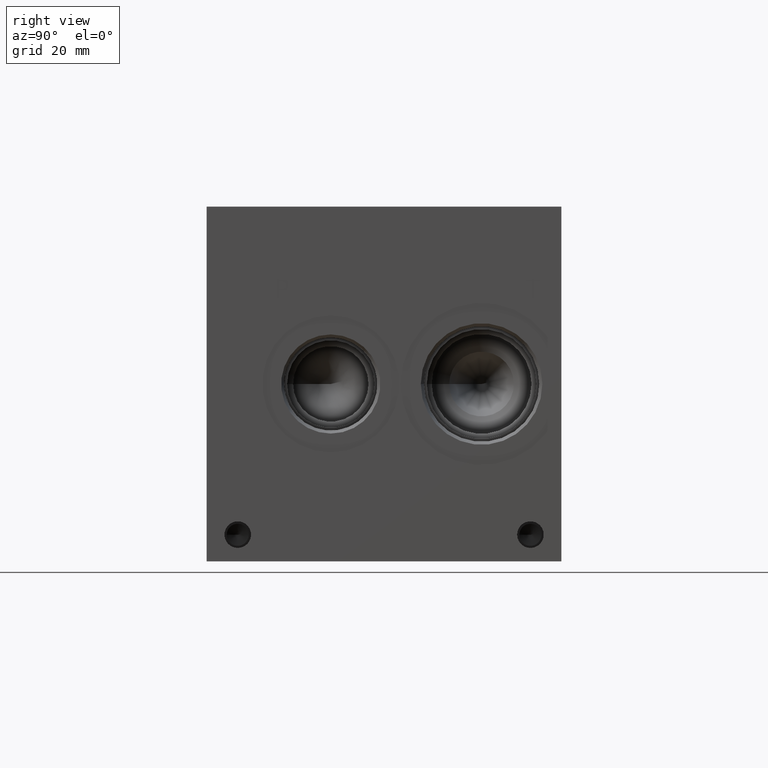
[diagram: clean part render]
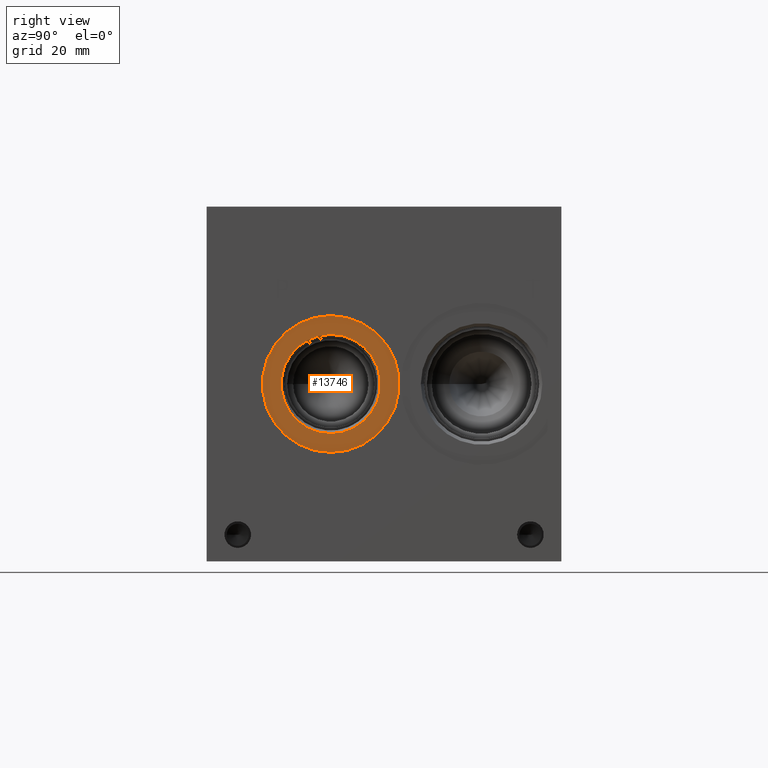
[diagram: same view with one face highlighted and labeled with its STEP entity id]
A machine part, right view. The second image highlights one B-rep face of the part: STEP entity #13746.
In plain terms, the highlighted planar face has unit normal (-1, 0, 0).
Its self-contained STEP definition (entity closure, byte-faithful):
#451=CIRCLE('',#14570,24.4856);
#452=CIRCLE('',#14571,24.4856);
#453=CIRCLE('',#14573,17.7546);
#454=CIRCLE('',#14574,17.7546);
#1134=FACE_BOUND('',#2641,.T.);
#1840=FACE_OUTER_BOUND('',#2640,.T.);
#2640=EDGE_LOOP('',(#11983,#11984));
#2641=EDGE_LOOP('',(#11985,#11986));
#6404=VERTEX_POINT('',#23776);
#6405=VERTEX_POINT('',#23778);
#6406=VERTEX_POINT('',#23782);
#6407=VERTEX_POINT('',#23783);
#8294=EDGE_CURVE('',#6404,#6405,#451,.T.);
#8295=EDGE_CURVE('',#6405,#6404,#452,.T.);
#8296=EDGE_CURVE('',#6406,#6407,#453,.T.);
#8297=EDGE_CURVE('',#6407,#6406,#454,.T.);
#11983=ORIENTED_EDGE('',*,*,#8295,.F.);
#11984=ORIENTED_EDGE('',*,*,#8294,.F.);
#11985=ORIENTED_EDGE('',*,*,#8296,.T.);
#11986=ORIENTED_EDGE('',*,*,#8297,.T.);
#12548=PLANE('',#14572);
#13746=ADVANCED_FACE('',(#1840,#1134),#12548,.F.);
#14570=AXIS2_PLACEMENT_3D('',#23779,#17392,#17393);
#14571=AXIS2_PLACEMENT_3D('',#23780,#17394,#17395);
#14572=AXIS2_PLACEMENT_3D('',#23781,#17396,#17397);
#14573=AXIS2_PLACEMENT_3D('',#23784,#17398,#17399);
#14574=AXIS2_PLACEMENT_3D('',#23785,#17400,#17401);
#17392=DIRECTION('center_axis',(-1.,0.,0.));
#17393=DIRECTION('ref_axis',(0.,0.,1.));
#17394=DIRECTION('center_axis',(-1.,0.,0.));
#17395=DIRECTION('ref_axis',(0.,0.,1.));
#17396=DIRECTION('center_axis',(-1.,0.,0.));
#17397=DIRECTION('ref_axis',(0.,0.,1.));
#17398=DIRECTION('center_axis',(-1.,0.,0.));
#17399=DIRECTION('ref_axis',(0.,0.,1.));
#17400=DIRECTION('center_axis',(-1.,0.,0.));
#17401=DIRECTION('ref_axis',(0.,0.,1.));
#23776=CARTESIAN_POINT('',(189.7126,44.45,87.9856));
#23778=CARTESIAN_POINT('',(189.7126,44.45,39.0144));
#23779=CARTESIAN_POINT('Origin',(189.7126,44.45,63.5));
#23780=CARTESIAN_POINT('Origin',(189.7126,44.45,63.5));
#23781=CARTESIAN_POINT('Origin',(189.7126,44.45,45.7454));
#23782=CARTESIAN_POINT('',(189.7126,44.45,45.7454));
#23783=CARTESIAN_POINT('',(189.7126,44.45,81.2546));
#23784=CARTESIAN_POINT('Origin',(189.7126,44.45,63.5));
#23785=CARTESIAN_POINT('Origin',(189.7126,44.45,63.5));